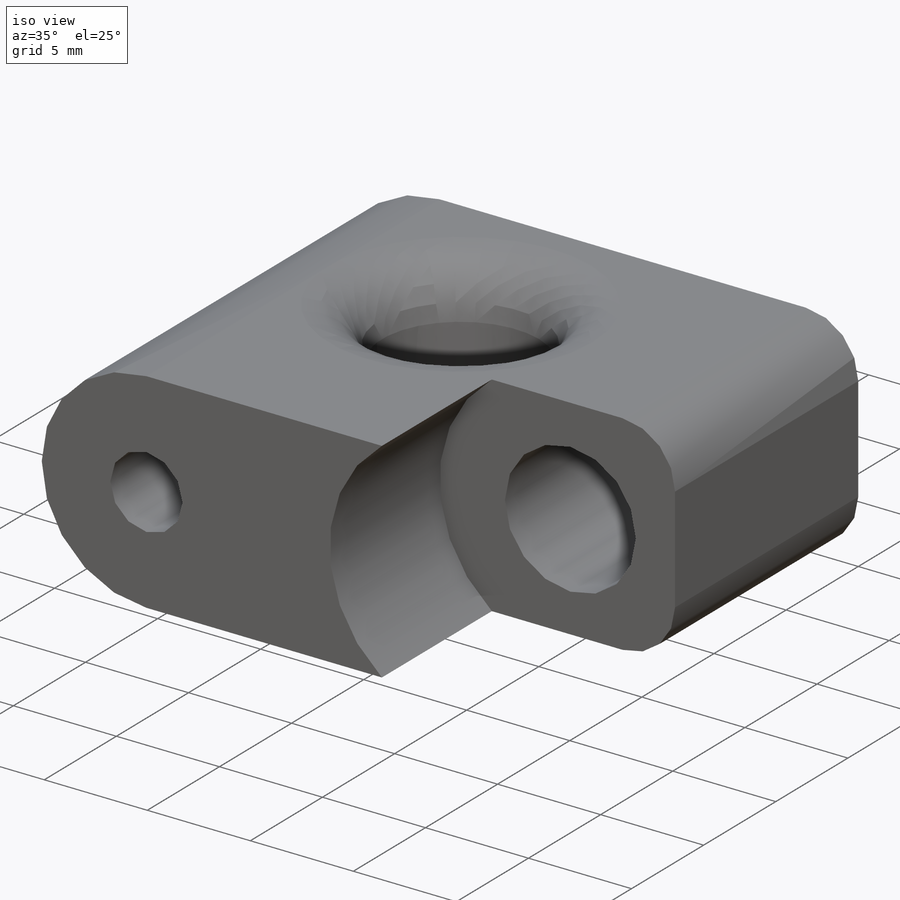
[diagram: iso view]
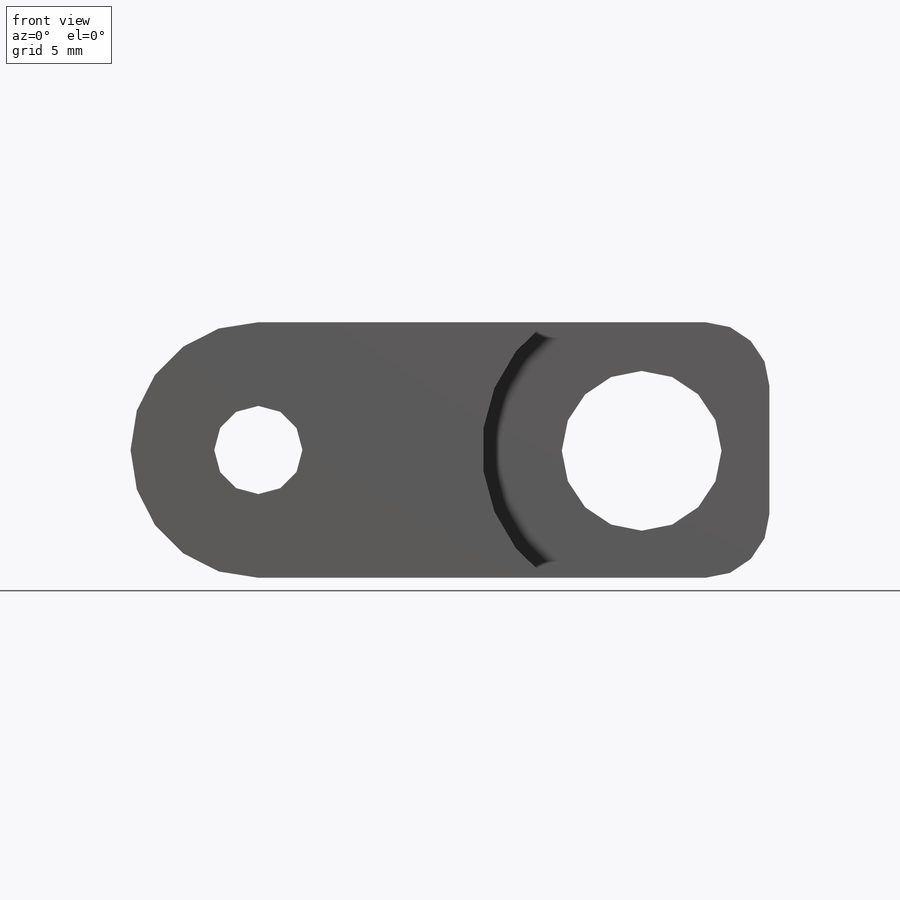
[diagram: front view]
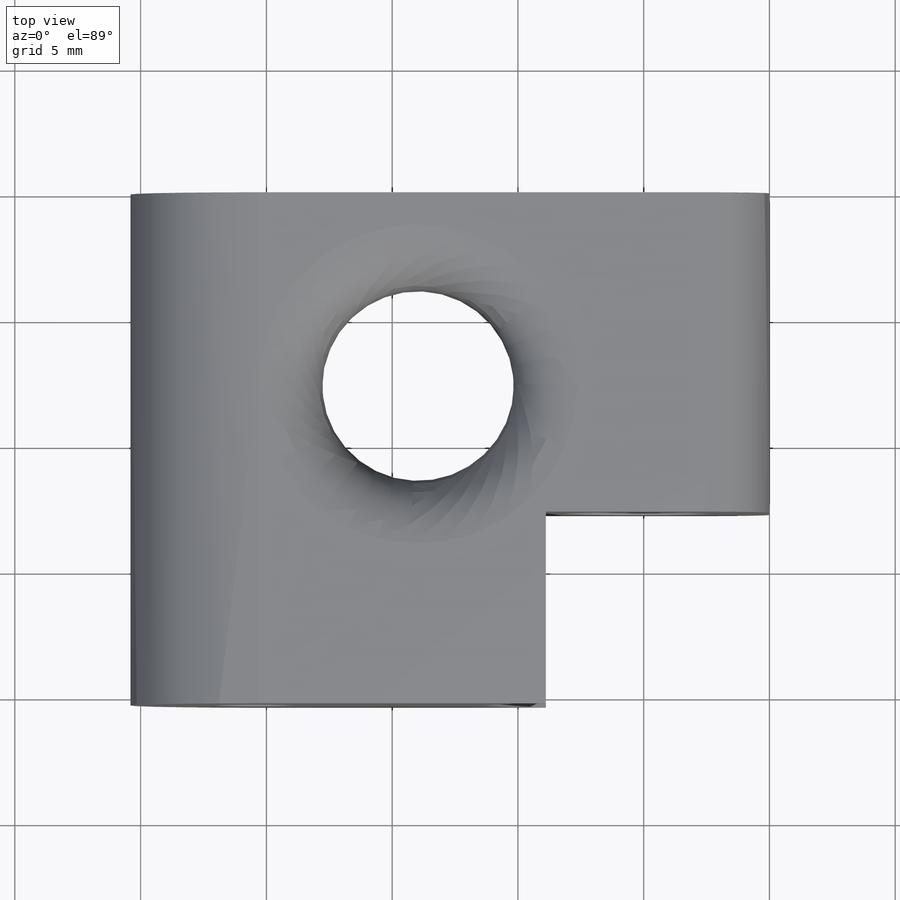
[diagram: top view]
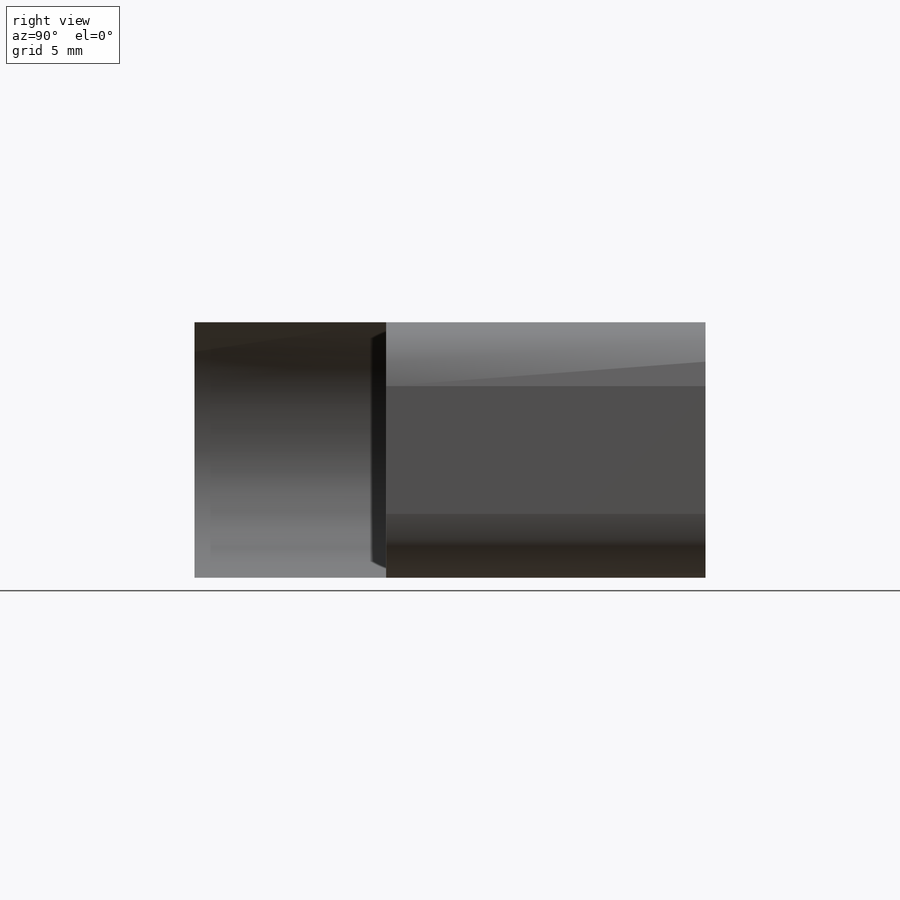
[diagram: right view]
SOLIDWORKS PART (.sldprt)
format: sldprt  version: not decoded by parser v0  size: 305,152 bytes
history: native  units: mm
features: sketch x8, plane x3, fillet x3, extrude x2, cut_extrude x2, hole x2, material x1 + 1 further entry (+7 scaffold rows collapsed)
feature tree (29):
  scaffold x7  (default folders/planes/origin — collapsed)
  material  "Material <not specified>"
  plane  "정면"
  plane  "윗면"
  plane  "우측면"
  "원점"
  sketch  "Sketch2"  dims[D1=10.16mm D2=10.16mm]
  extrude  "Extrude2"  Depth=20.32mm
  fillet  "Fillet1"  Radius=2.54mm
  sketch  "Sketch5"
  extrude  "Extrude3"  Depth=15.24mm
  fillet  "Fillet3"  Radius=5.08mm
  sketch  "Sketch9"  dims[D1=7.62mm D2=12.7mm D3=6.35mm]
  cut_extrude  "Cut-Extrude1"  [1 undecoded]
  fillet  "Fillet4"  Radius=2.54mm
  sketch  "Sketch10"  dims[c1.D1=11.0mm c1.D2=10.0mm c2.D1=12.7mm c2.D2=5.08mm c2.D3=5.08mm]
  cut_extrude  "Cut-Extrude2"  Depth=7.62mm
  hole  "1/4 (0.25) Diameter Hole1"  Diameter=6.35mm Depth=12.7mm
  sketch  "3DSketch1"  dims[c1.D1=~0.091432mm c1.D2=~0.091432mm c2.D1=5.0mm c2.D2=5.0mm c3.D1=~5.117695mm c3.D3=~5.117695mm c3.D2=~5.117695mm c4.D1=~5.117695mm c5.D1=~5.047964mm c5.D2=5.08mm]
  sketch  "Sketch11"  dims[hole-wizard template sketch: 61 standard entries collapsed; hole parameters above]
  hole  "#6-32 Tapped Hole1"  Diameter=3.5052mm Depth=20.32mm
  sketch  "3DSketch2"
  sketch  "Sketch12"  dims[hole-wizard template sketch: 59 standard entries collapsed; hole parameters kept: c18.Thread Major Dia.=3.5052mm c18.Thru Tap Drill Depth=20.32mm]
decode coverage: 14 of 17 modeling features carry decoded parameters; 1 rows unclassified (native names shown)
note: ~ marks probable driven/reference dimensions
note: 1 parameter value undecoded
note: suppression state not decoded; provenance and decode notes live in map.json
